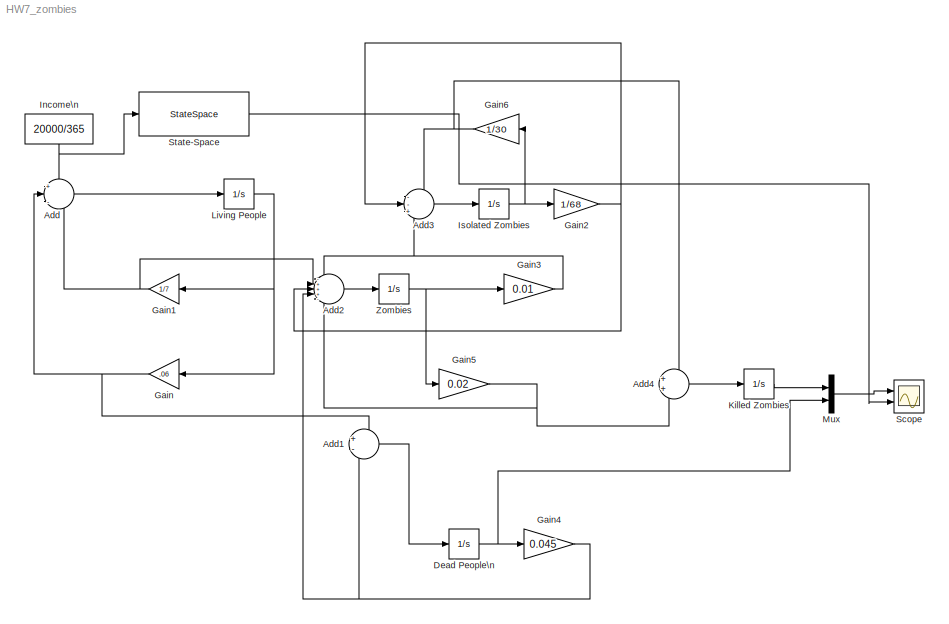
MODEL HW7_zombies
KIND model
BLOCK [Sum] Add
  IconShape = round
  InputSameDT = off
  Inputs = +|-|-
  OutDataTypeStr = Inherit: Inherit via internal rule
  Ports = [3, 1]
  SID = 4
  SaturateOnIntegerOverflow = off
BLOCK [Sum] Add1
  IconShape = round
  InputSameDT = off
  Inputs = +-
  OutDataTypeStr = Inherit: Inherit via internal rule
  Ports = [2, 1]
  SID = 10
  SaturateOnIntegerOverflow = off
BLOCK [Sum] Add2
  IconShape = round
  InputSameDT = off
  Inputs = -+++-
  OutDataTypeStr = Inherit: Inherit via internal rule
  Ports = [5, 1]
  SID = 11
  SaturateOnIntegerOverflow = off
BLOCK [Sum] Add3
  IconShape = round
  InputSameDT = off
  Inputs = --+
  OutDataTypeStr = Inherit: Inherit via internal rule
  Ports = [3, 1]
  SID = 14
  SaturateOnIntegerOverflow = off
BLOCK [Sum] Add4
  IconShape = round
  InputSameDT = off
  OutDataTypeStr = Inherit: Inherit via internal rule
  Ports = [2, 1]
  SID = 18
  SaturateOnIntegerOverflow = off
BLOCK [Integrator] Dead People\n
  Ports = [1, 1]
  SID = 6
BLOCK [Gain] Gain
  Gain = .06
  OutDataTypeStr = Inherit: Inherit via internal rule
  ParamDataTypeStr = Inherit: Inherit via internal rule
  SID = 3
  SaturateOnIntegerOverflow = off
BLOCK [Gain] Gain1
  Gain = 1/7
  OutDataTypeStr = Inherit: Inherit via internal rule
  ParamDataTypeStr = Inherit: Inherit via internal rule
  SID = 9
  SaturateOnIntegerOverflow = off
BLOCK [Gain] Gain2
  Gain = 1/68
  OutDataTypeStr = Inherit: Inherit via internal rule
  ParamDataTypeStr = Inherit: Inherit via internal rule
  SID = 12
  SaturateOnIntegerOverflow = off
BLOCK [Gain] Gain3
  Gain = 0.01
  OutDataTypeStr = Inherit: Inherit via internal rule
  ParamDataTypeStr = Inherit: Inherit via internal rule
  SID = 13
  SaturateOnIntegerOverflow = off
BLOCK [Gain] Gain4
  Gain = 0.045
  OutDataTypeStr = Inherit: Inherit via internal rule
  ParamDataTypeStr = Inherit: Inherit via internal rule
  SID = 15
  SaturateOnIntegerOverflow = off
BLOCK [Gain] Gain5
  Gain = 0.02
  OutDataTypeStr = Inherit: Inherit via internal rule
  ParamDataTypeStr = Inherit: Inherit via internal rule
  SID = 16
  SaturateOnIntegerOverflow = off
BLOCK [Gain] Gain6
  Gain = 1/30
  OutDataTypeStr = Inherit: Inherit via internal rule
  ParamDataTypeStr = Inherit: Inherit via internal rule
  SID = 17
  SaturateOnIntegerOverflow = off
BLOCK [Constant] Income\n
  SID = 1
  Value = 20000/365
BLOCK [Integrator] Isolated Zombies
  Ports = [1, 1]
  SID = 8
BLOCK [Integrator] Killed Zombies
  Ports = [1, 1]
  SID = 7
BLOCK [Integrator] Living People
  InitialCondition = 300000
  Ports = [1, 1]
  SID = 2
BLOCK [Mux] Mux
  DisplayOption = bar
  Inputs = 2
  Ports = [2, 1]
  SID = 20
BLOCK [Scope] Scope
  DataFormat = StructureWithTime
  Floating = off
  NumInputPorts = 2
  Ports = [2]
  SID = 19
  SampleTime = 0
  ShowLegends = off
  YMax = 5~5
  YMin = -5~-5
  ZoomMode = yonly
BLOCK [StateSpace] State-Space
  A = [-1/7-.06 0 0 0 0; .06 -.045 0 0 0; 1/7 .045 -.03 1/68 0; 0 0 .01 -1/68-1/30 0; 0 0 .02 1/30 0]
  B = [1; 0; 0; 0; 0]
  C = [0 1 0 0 0; 0 0 0 0 1]
  D = [0; 0]
  SID = 21
  X0 = [300000; 0; 1; 0; 0]
BLOCK [Integrator] Zombies
  Ports = [1, 1]
  SID = 5
LINE Add1:1 -> Dead People\n:1
LINE Add2:1 -> Zombies:1
LINE Add3:1 -> Isolated Zombies:1
LINE Add4:1 -> Killed Zombies:1
LINE Add:1 -> Living People:1
NET Dead People\n:1 -> Gain4:1, Mux:2
NET Gain1:1 -> Add2:2, Add:3
NET Gain2:1 -> Add2:3, Add3:2
NET Gain3:1 -> Add2:1, Add3:3
NET Gain4:1 -> Add1:2, Add2:4
NET Gain5:1 -> Add2:5, Add4:2
NET Gain6:1 -> Add3:1, Add4:1
NET Gain:1 -> Add1:1, Add:2
NET Income\n:1 -> Add:1, State-Space:1
NET Isolated Zombies:1 -> Gain2:1, Gain6:1
LINE Killed Zombies:1 -> Mux:1
NET Living People:1 -> Gain1:1, Gain:1
LINE Mux:1 -> Scope:1
LINE State-Space:1 -> Scope:2
NET Zombies:1 -> Gain3:1, Gain5:1
note: NET lines group one-source signal fan-out (src -> all destinations, sorted); 1:1 wires keep LINE
